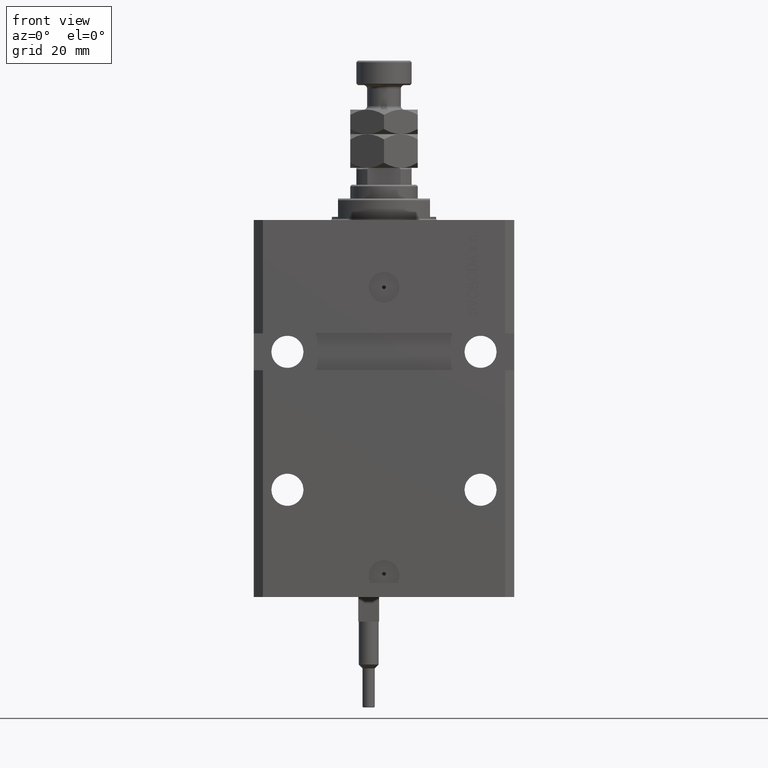
[diagram: clean part render]
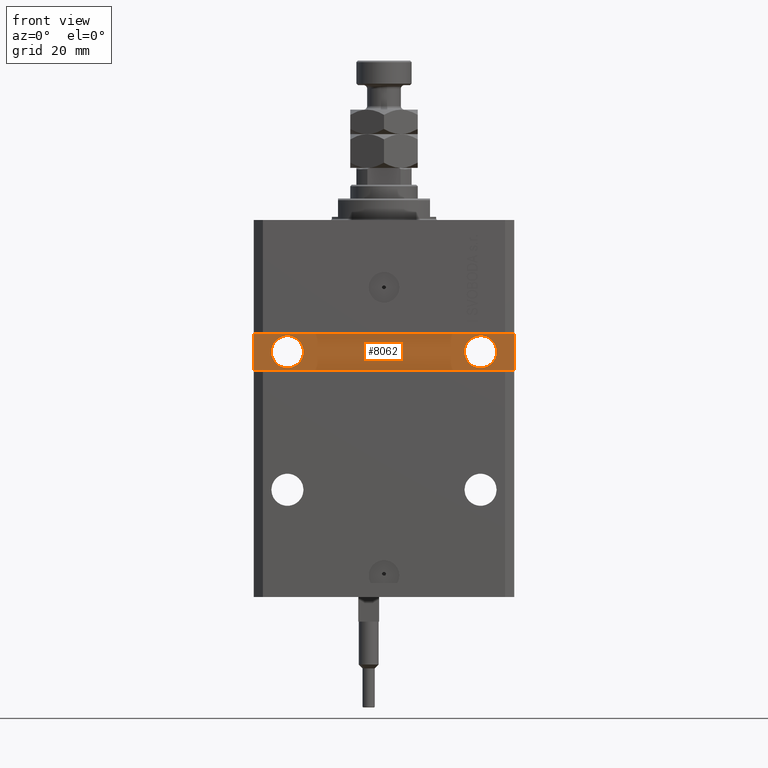
[diagram: same view with one face highlighted and labeled with its STEP entity id]
A machine part, front view. The second image highlights one B-rep face of the part: STEP entity #8062.
In plain terms, the highlighted planar face has unit normal (0, -1, 0).
Its self-contained STEP definition (entity closure, byte-faithful):
#253 = CIRCLE ( 'NONE', #28858, 5.249999999999997335 ) ;
#938 = ORIENTED_EDGE ( 'NONE', *, *, #8912, .T. ) ;
#1001 = VERTEX_POINT ( 'NONE', #34692 ) ;
#1134 = DIRECTION ( 'NONE',  ( 1.000000000000000000, 1.632680918566406300E-16, 0.000000000000000000 ) ) ;
#2563 = AXIS2_PLACEMENT_3D ( 'NONE', #2706, #6025, #41075 ) ;
#2621 = VERTEX_POINT ( 'NONE', #44589 ) ;
#2706 = CARTESIAN_POINT ( 'NONE',  ( 31.50000000000001421, -28.49999999999999645, -43.00000000000000000 ) ) ;
#2835 = DIRECTION ( 'NONE',  ( 1.101411730780568590E-16, -1.000000000000000000, 0.000000000000000000 ) ) ;
#3944 = EDGE_CURVE ( 'NONE', #29573, #1001, #41747, .T. ) ;
#5050 = LINE ( 'NONE', #20408, #5151 ) ;
#5151 = VECTOR ( 'NONE', #40099, 1000.000000000000000 ) ;
#5511 = VECTOR ( 'NONE', #30318, 1000.000000000000000 ) ;
#6025 = DIRECTION ( 'NONE',  ( 1.037025423586453699E-16, -1.000000000000000000, 1.848892746611746419E-32 ) ) ;
#6033 = VERTEX_POINT ( 'NONE', #44706 ) ;
#6372 = EDGE_LOOP ( 'NONE', ( #14323, #36043 ) ) ;
#6764 = CIRCLE ( 'NONE', #20631, 5.249999999999997335 ) ;
#7597 = EDGE_CURVE ( 'NONE', #37391, #12415, #6764, .T. ) ;
#7721 = ORIENTED_EDGE ( 'NONE', *, *, #21761, .T. ) ;
#8062 = ADVANCED_FACE ( 'NONE', ( #40535, #33105, #28272 ), #13141, .T. ) ;
#8230 = EDGE_LOOP ( 'NONE', ( #7721, #16661, #938, #16732 ) ) ;
#8912 = EDGE_CURVE ( 'NONE', #43076, #38378, #5050, .T. ) ;
#9697 = EDGE_CURVE ( 'NONE', #38378, #2621, #44257, .T. ) ;
#9698 = CARTESIAN_POINT ( 'NONE',  ( -42.50000000000000000, -28.50000000000000711, -37.00000000000000711 ) ) ;
#10002 = CARTESIAN_POINT ( 'NONE',  ( -31.49999999999998579, -28.50000000000000355, -43.00000000000000000 ) ) ;
#11402 = CARTESIAN_POINT ( 'NONE',  ( 42.50000000000001421, -28.49999999999999289, -48.99999999999997868 ) ) ;
#12415 = VERTEX_POINT ( 'NONE', #33029 ) ;
#13141 = PLANE ( 'NONE',  #14084 ) ;
#14056 = CARTESIAN_POINT ( 'NONE',  ( -42.50000000000000000, -28.50000000000000711, -37.00000000000000711 ) ) ;
#14084 = AXIS2_PLACEMENT_3D ( 'NONE', #36442, #44628, #1134 ) ;
#14323 = ORIENTED_EDGE ( 'NONE', *, *, #42414, .F. ) ;
#14689 = VECTOR ( 'NONE', #14985, 1000.000000000000000 ) ;
#14985 = DIRECTION ( 'NONE',  ( 0.000000000000000000, 0.000000000000000000, 1.000000000000000000 ) ) ;
#16661 = ORIENTED_EDGE ( 'NONE', *, *, #24444, .T. ) ;
#16732 = ORIENTED_EDGE ( 'NONE', *, *, #9697, .T. ) ;
#18447 = DIRECTION ( 'NONE',  ( 1.000000000000000000, 0.000000000000000000, 0.000000000000000000 ) ) ;
#18457 = DIRECTION ( 'NONE',  ( 1.000000000000000000, 0.000000000000000000, 0.000000000000000000 ) ) ;
#18842 = AXIS2_PLACEMENT_3D ( 'NONE', #49148, #49407, #18457 ) ;
#19639 = CARTESIAN_POINT ( 'NONE',  ( 42.50000000000001421, -28.49999999999999289, -37.00000000000000000 ) ) ;
#20408 = CARTESIAN_POINT ( 'NONE',  ( 42.50000000000001421, -28.49999999999999289, -37.00000000000000000 ) ) ;
#20631 = AXIS2_PLACEMENT_3D ( 'NONE', #10002, #2835, #18447 ) ;
#21761 = EDGE_CURVE ( 'NONE', #2621, #6033, #22631, .T. ) ;
#22631 = LINE ( 'NONE', #46665, #5511 ) ;
#24444 = EDGE_CURVE ( 'NONE', #6033, #43076, #34441, .T. ) ;
#24926 = DIRECTION ( 'NONE',  ( 1.000000000000000000, 0.000000000000000000, 0.000000000000000000 ) ) ;
#28272 = FACE_OUTER_BOUND ( 'NONE', #8230, .T. ) ;
#28858 = AXIS2_PLACEMENT_3D ( 'NONE', #37200, #44884, #24926 ) ;
#29573 = VERTEX_POINT ( 'NONE', #49702 ) ;
#30318 = DIRECTION ( 'NONE',  ( 1.000000000000000000, 1.632680918566406300E-16, 1.632680918566406300E-16 ) ) ;
#31651 = ORIENTED_EDGE ( 'NONE', *, *, #46921, .F. ) ;
#32491 = DIRECTION ( 'NONE',  ( 0.000000000000000000, 0.000000000000000000, -1.000000000000000000 ) ) ;
#33029 = CARTESIAN_POINT ( 'NONE',  ( -26.24999999999998934, -28.50000000000000355, -43.00000000000000000 ) ) ;
#33105 = FACE_BOUND ( 'NONE', #47803, .T. ) ;
#34441 = LINE ( 'NONE', #11402, #14689 ) ;
#34692 = CARTESIAN_POINT ( 'NONE',  ( 36.75000000000001421, -28.49999999999999645, -43.00000000000000000 ) ) ;
#36043 = ORIENTED_EDGE ( 'NONE', *, *, #3944, .F. ) ;
#36442 = CARTESIAN_POINT ( 'NONE',  ( 4.790119779726142858E-15, -28.50000000000000000, 0.000000000000000000 ) ) ;
#36839 = CIRCLE ( 'NONE', #2563, 5.249999999999997335 ) ;
#37200 = CARTESIAN_POINT ( 'NONE',  ( -31.49999999999998579, -28.50000000000000355, -43.00000000000000000 ) ) ;
#37391 = VERTEX_POINT ( 'NONE', #47897 ) ;
#38378 = VERTEX_POINT ( 'NONE', #14056 ) ;
#40099 = DIRECTION ( 'NONE',  ( -1.000000000000000000, -1.632680918566406300E-16, -8.163404592832031500E-17 ) ) ;
#40535 = FACE_BOUND ( 'NONE', #6372, .T. ) ;
#41075 = DIRECTION ( 'NONE',  ( 1.000000000000000000, 0.000000000000000000, 0.000000000000000000 ) ) ;
#41747 = CIRCLE ( 'NONE', #18842, 5.249999999999997335 ) ;
#42414 = EDGE_CURVE ( 'NONE', #1001, #29573, #36839, .T. ) ;
#43076 = VERTEX_POINT ( 'NONE', #19639 ) ;
#43156 = ORIENTED_EDGE ( 'NONE', *, *, #7597, .F. ) ;
#44257 = LINE ( 'NONE', #9698, #45208 ) ;
#44589 = CARTESIAN_POINT ( 'NONE',  ( -42.50000000000000000, -28.50000000000000711, -48.99999999999999289 ) ) ;
#44628 = DIRECTION ( 'NONE',  ( 1.632680918566406300E-16, -1.000000000000000000, 0.000000000000000000 ) ) ;
#44706 = CARTESIAN_POINT ( 'NONE',  ( 42.50000000000001421, -28.49999999999999289, -48.99999999999997868 ) ) ;
#44884 = DIRECTION ( 'NONE',  ( 1.101411730780568590E-16, -1.000000000000000000, 0.000000000000000000 ) ) ;
#45208 = VECTOR ( 'NONE', #32491, 1000.000000000000000 ) ;
#46665 = CARTESIAN_POINT ( 'NONE',  ( -42.50000000000000000, -28.50000000000000711, -48.99999999999999289 ) ) ;
#46921 = EDGE_CURVE ( 'NONE', #12415, #37391, #253, .T. ) ;
#47803 = EDGE_LOOP ( 'NONE', ( #31651, #43156 ) ) ;
#47897 = CARTESIAN_POINT ( 'NONE',  ( -36.74999999999998579, -28.50000000000000355, -43.00000000000000000 ) ) ;
#49148 = CARTESIAN_POINT ( 'NONE',  ( 31.50000000000001421, -28.49999999999999645, -43.00000000000000000 ) ) ;
#49407 = DIRECTION ( 'NONE',  ( 1.037025423586453699E-16, -1.000000000000000000, 1.848892746611746419E-32 ) ) ;
#49702 = CARTESIAN_POINT ( 'NONE',  ( 26.25000000000001776, -28.49999999999999645, -43.00000000000000000 ) ) ;